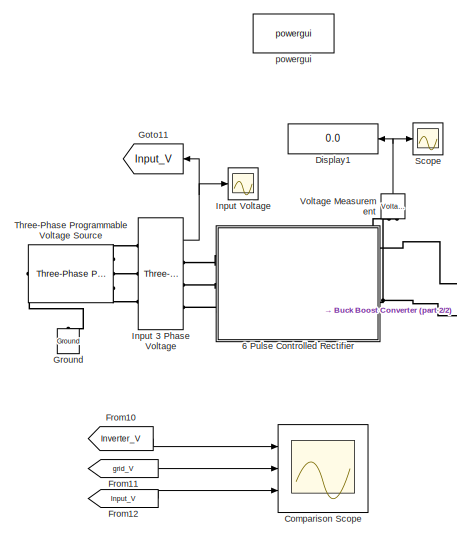
[diagram: root canvas - part 1/2, left side, full height]
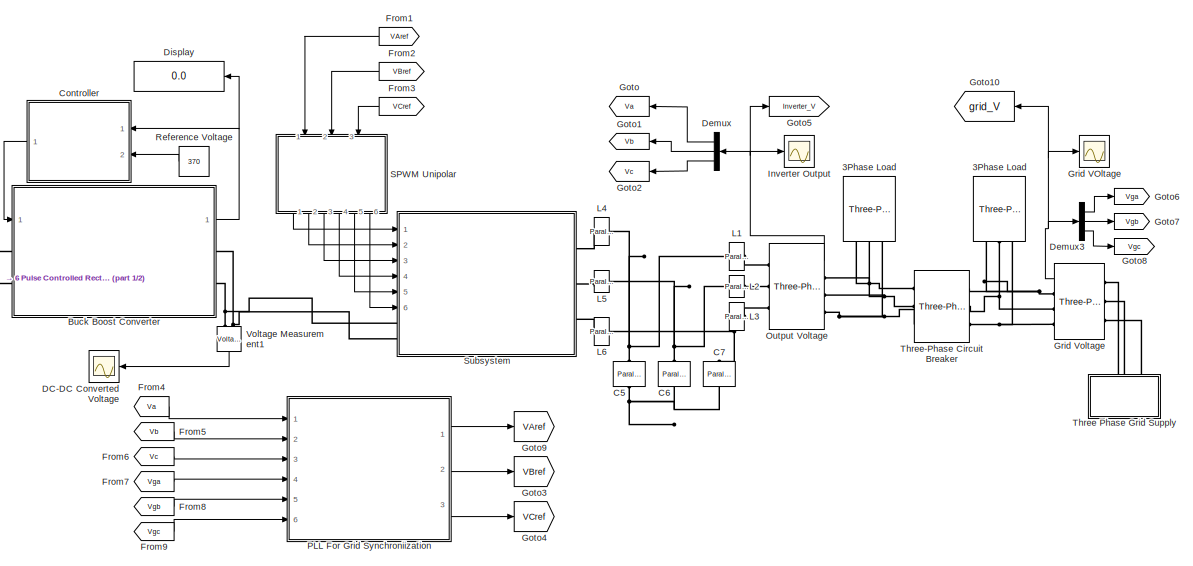
[diagram: root canvas - part 2/2, center side, full height]
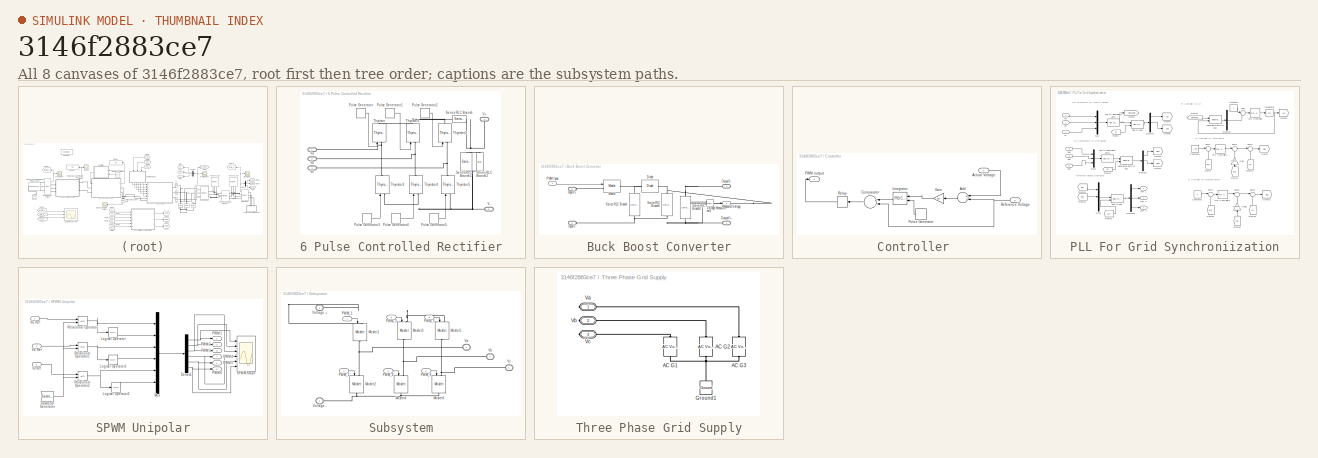
[diagram: thumbnail index - all 8 canvases of the model, root first then tree order]
MODEL slx_3146f2883ce7
KIND model
CONFIG AbsTol = auto
CONFIG EnableMultiTasking = off
CONFIG FixedStep = auto
CONFIG MaxStep = auto
CONFIG MinStep = auto
CONFIG RelTol = 1e-3
CONFIG SampleTimeConstraint = Unconstrained
CONFIG Solver = ode23tb
CONFIG SolverName = ode23tb
CONFIG StartTime = 0.0
CONFIG StopTime = 1
BLOCK [Scope]  Grid VOltage 
  Floating = off
  NumInputPorts = 1
  Ports = [1]
  ScopeSpecificationString = Simulink.scopes.TimeScopeBlockCfg('CurrentConfiguration', extmgr.ConfigurationSet(extmgr.Configuration('Core','General UI',true),extmgr.Configuration('Core','Source UI',true),extmgr.Configuration('Sources','WiredSimulink',true,'DataLoggingVariableName','ScopeData2','DataLogging',true,'DataLoggingDecimateData',true,'DataLoggingDecimation','1'),extmgr.Configuration('Visuals','Time Domain',true,'Seri...<+1931ch>
BLOCK [Reference] 3Phase Load   REF=powerlib/Elements/Three-Phase
Parallel RLC Load
  AttributesFormatString = \n
  Ports = [0, 0, 0, 0, 0, 3]
  SourceBlock = powerlib/Elements/Three-Phase\nParallel RLC Load
  SourceProductBaseCode = PS
  SourceProductName = Simscape Electrical
  SourceType = Three-Phase Parallel RLC Load
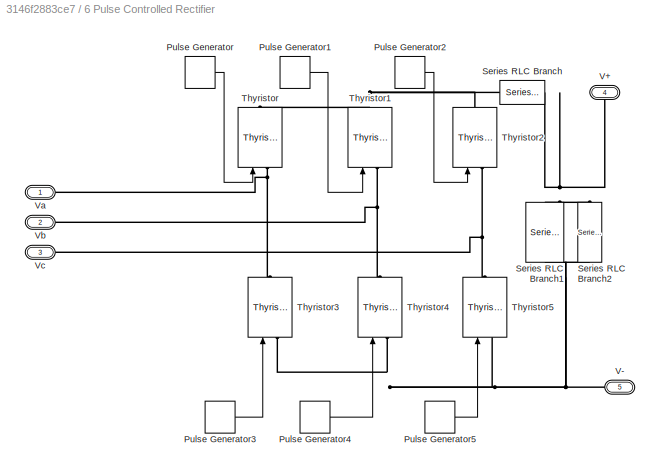
BLOCK [SubSystem] 6 Pulse Controlled Rectifier
  Ports = [0, 0, 0, 0, 0, 3, 2]
  RequestExecContextInheritance = off
BLOCK [DiscretePulseGenerator] 6 Pulse Controlled Rectifier/Pulse Generator
  Amplitude = 10
  Period = 0.02
  PhaseDelay = (50)*(0.02)/360
  Ports = [0, 1]
  PulseType = Time based
  PulseWidth = 50
BLOCK [DiscretePulseGenerator] 6 Pulse Controlled Rectifier/Pulse Generator1
  Amplitude = 10
  Period = 0.02
  PhaseDelay = (50+120)*(0.02)/360
  Ports = [0, 1]
  PulseType = Time based
  PulseWidth = 50
BLOCK [DiscretePulseGenerator] 6 Pulse Controlled Rectifier/Pulse Generator2
  Amplitude = 10
  Period = 0.02
  PhaseDelay = (50+240)*(0.02)/360
  Ports = [0, 1]
  PulseType = Time based
  PulseWidth = 50
BLOCK [DiscretePulseGenerator] 6 Pulse Controlled Rectifier/Pulse Generator3
  Amplitude = 10
  Period = 0.02
  PhaseDelay = (50+180)*(0.02)/360
  Ports = [0, 1]
  PulseType = Time based
  PulseWidth = 50
BLOCK [DiscretePulseGenerator] 6 Pulse Controlled Rectifier/Pulse Generator4
  Amplitude = 10
  Period = 0.02
  PhaseDelay = (50+300)*(0.02)/360
  Ports = [0, 1]
  PulseType = Time based
  PulseWidth = 50
BLOCK [DiscretePulseGenerator] 6 Pulse Controlled Rectifier/Pulse Generator5
  Amplitude = 10
  Period = 0.02
  PhaseDelay = (50+60)*(0.02)/360
  Ports = [0, 1]
  PulseType = Time based
  PulseWidth = 50
BLOCK [Reference] 6 Pulse Controlled Rectifier/Series RLC Branch  REF=powerlib/Elements/Series RLC Branch
  Ports = [0, 0, 0, 0, 0, 1, 1]
  SourceBlock = powerlib/Elements/Series RLC Branch
  SourceProductBaseCode = PS
  SourceProductName = Simscape Electrical
  SourceType = Series RLC Branch
BLOCK [Reference] 6 Pulse Controlled Rectifier/Series RLC Branch1  REF=powerlib/Elements/Series RLC Branch
  Ports = [0, 0, 0, 0, 0, 1, 1]
  SourceBlock = powerlib/Elements/Series RLC Branch
  SourceProductBaseCode = PS
  SourceProductName = Simscape Electrical
  SourceType = Series RLC Branch
BLOCK [Reference] 6 Pulse Controlled Rectifier/Series RLC Branch2  REF=powerlib/Elements/Series RLC Branch
  Ports = [0, 0, 0, 0, 0, 1, 1]
  SourceBlock = powerlib/Elements/Series RLC Branch
  SourceProductBaseCode = PS
  SourceProductName = Simscape Electrical
  SourceType = Series RLC Branch
BLOCK [Reference] 6 Pulse Controlled Rectifier/Thyristor  REF=powerlib/Power
Electronics/Thyristor
  Ports = [1, 0, 0, 0, 0, 1, 1]
  SourceBlock = powerlib/Power\nElectronics/Thyristor
  SourceProductBaseCode = PS
  SourceProductName = Simscape Electrical
  SourceType = Thyristor
BLOCK [Reference] 6 Pulse Controlled Rectifier/Thyristor1  REF=powerlib/Power
Electronics/Thyristor
  Ports = [1, 0, 0, 0, 0, 1, 1]
  SourceBlock = powerlib/Power\nElectronics/Thyristor
  SourceProductBaseCode = PS
  SourceProductName = Simscape Electrical
  SourceType = Thyristor
BLOCK [Reference] 6 Pulse Controlled Rectifier/Thyristor2  REF=powerlib/Power
Electronics/Thyristor
  Ports = [1, 0, 0, 0, 0, 1, 1]
  SourceBlock = powerlib/Power\nElectronics/Thyristor
  SourceProductBaseCode = PS
  SourceProductName = Simscape Electrical
  SourceType = Thyristor
BLOCK [Reference] 6 Pulse Controlled Rectifier/Thyristor3  REF=powerlib/Power
Electronics/Thyristor
  Ports = [1, 0, 0, 0, 0, 1, 1]
  SourceBlock = powerlib/Power\nElectronics/Thyristor
  SourceProductBaseCode = PS
  SourceProductName = Simscape Electrical
  SourceType = Thyristor
BLOCK [Reference] 6 Pulse Controlled Rectifier/Thyristor4  REF=powerlib/Power
Electronics/Thyristor
  Ports = [1, 0, 0, 0, 0, 1, 1]
  SourceBlock = powerlib/Power\nElectronics/Thyristor
  SourceProductBaseCode = PS
  SourceProductName = Simscape Electrical
  SourceType = Thyristor
BLOCK [Reference] 6 Pulse Controlled Rectifier/Thyristor5  REF=powerlib/Power
Electronics/Thyristor
  Ports = [1, 0, 0, 0, 0, 1, 1]
  SourceBlock = powerlib/Power\nElectronics/Thyristor
  SourceProductBaseCode = PS
  SourceProductName = Simscape Electrical
  SourceType = Thyristor
BLOCK [PMIOPort] 6 Pulse Controlled Rectifier/V+
  Port = 4
  Side = Right
BLOCK [PMIOPort] 6 Pulse Controlled Rectifier/V-
  Port = 5
  Side = Right
BLOCK [PMIOPort] 6 Pulse Controlled Rectifier/Va
  Side = Left
BLOCK [PMIOPort] 6 Pulse Controlled Rectifier/Vb
  Port = 2
  Side = Left
BLOCK [PMIOPort] 6 Pulse Controlled Rectifier/Vc
  Port = 3
  Side = Left
BLOCK [SubSystem] Buck Boost Converter
  Ports = [1, 1, 0, 0, 0, 2, 2]
  RequestExecContextInheritance = off
BLOCK [Reference] Buck Boost Converter/Diode  REF=powerlib/Power
Electronics/Diode
  Ports = [0, 0, 0, 0, 0, 1, 1]
  SourceBlock = powerlib/Power\nElectronics/Diode
  SourceProductBaseCode = PS
  SourceProductName = Simscape Electrical
  SourceType = Diode
BLOCK [PMIOPort] Buck Boost Converter/InputV+
  Port = 3
  Side = Left
BLOCK [PMIOPort] Buck Boost Converter/InputV-
  Port = 4
  Side = Left
BLOCK [Outport] Buck Boost Converter/Measured Voltage
  IconDisplay = Port number
  VectorParamsAs1DForOutWhenUnconnected = on
BLOCK [Reference] Buck Boost Converter/Mosfet  REF=powerlib/Power
Electronics/Mosfet
  Ports = [1, 0, 0, 0, 0, 1, 1]
  SourceBlock = powerlib/Power\nElectronics/Mosfet
  SourceProductBaseCode = PS
  SourceProductName = Simscape Electrical
  SourceType = Mosfet
BLOCK [PMIOPort] Buck Boost Converter/OutputV+
  Port = 2
  Side = Right
BLOCK [PMIOPort] Buck Boost Converter/OutputV-
  Side = Right
BLOCK [Inport] Buck Boost Converter/PWM Input
  IconDisplay = Port number
BLOCK [Reference] Buck Boost Converter/Series RLC Branch  REF=powerlib/Elements/Series RLC Branch
  Ports = [0, 0, 0, 0, 0, 1, 1]
  SourceBlock = powerlib/Elements/Series RLC Branch
  SourceProductBaseCode = PS
  SourceProductName = Simscape Electrical
  SourceType = Series RLC Branch
BLOCK [Reference] Buck Boost Converter/Series RLC Branch1  REF=powerlib/Elements/Series RLC Branch
  Ports = [0, 0, 0, 0, 0, 1, 1]
  SourceBlock = powerlib/Elements/Series RLC Branch
  SourceProductBaseCode = PS
  SourceProductName = Simscape Electrical
  SourceType = Series RLC Branch
BLOCK [Reference] Buck Boost Converter/Series RLC Branch2  REF=powerlib/Elements/Series RLC Branch
  Ports = [0, 0, 0, 0, 0, 1, 1]
  SourceBlock = powerlib/Elements/Series RLC Branch
  SourceProductBaseCode = PS
  SourceProductName = Simscape Electrical
  SourceType = Series RLC Branch
BLOCK [Reference] Buck Boost Converter/Voltage Measurement1  REF=powerlib/Measurements/Voltage Measurement
  Ports = [0, 1, 0, 0, 0, 2]
  SourceBlock = powerlib/Measurements/Voltage Measurement
  SourceProductBaseCode = PS
  SourceProductName = Simscape Electrical
  SourceType = Voltage Measurement
  UserDataPersistent = on
BLOCK [Reference] C5  REF=powerlib/Elements/Parallel RLC Branch
  AttributesFormatString = \n
  Ports = [0, 0, 0, 0, 0, 1, 1]
  SourceBlock = powerlib/Elements/Parallel RLC Branch
  SourceProductBaseCode = PS
  SourceProductName = Simscape Electrical
  SourceType = Parallel RLC Branch
BLOCK [Reference] C6  REF=powerlib/Elements/Parallel RLC Branch
  AttributesFormatString = \n
  Ports = [0, 0, 0, 0, 0, 1, 1]
  SourceBlock = powerlib/Elements/Parallel RLC Branch
  SourceProductBaseCode = PS
  SourceProductName = Simscape Electrical
  SourceType = Parallel RLC Branch
BLOCK [Reference] C7  REF=powerlib/Elements/Parallel RLC Branch
  AttributesFormatString = \n
  Ports = [0, 0, 0, 0, 0, 1, 1]
  SourceBlock = powerlib/Elements/Parallel RLC Branch
  SourceProductBaseCode = PS
  SourceProductName = Simscape Electrical
  SourceType = Parallel RLC Branch
BLOCK [Scope] Comparison Scope
  Floating = off
  NumInputPorts = 3
  Ports = [3]
  ScopeSpecificationString = Simulink.scopes.TimeScopeBlockCfg('CurrentConfiguration', extmgr.ConfigurationSet(extmgr.Configuration('Core','General UI',true,'FigureColor',[0.8 0.8 0.8]),extmgr.Configuration('Core','Source UI',true),extmgr.Configuration('Sources','WiredSimulink',true,'DataLoggingLimitDataPoints',true,'DataLoggingMaxPoints','100000','DataLoggingVariableName','ScopeData4'),extmgr.Configuration('Visuals','Time Do...<+4243ch>
BLOCK [SubSystem] Controller 
  Ports = [2, 1]
  RequestExecContextInheritance = off
BLOCK [Inport] Controller /Actual Voltage
  IconDisplay = Port number
BLOCK [Sum] Controller /Add
  InputSameDT = off
  OutDataTypeStr = Inherit: Inherit via internal rule
  Ports = [2, 1]
  SaturateOnIntegerOverflow = off
BLOCK [Sum] Controller /Comparator
  InputSameDT = off
  Inputs = +-
  OutDataTypeStr = Inherit: Inherit via internal rule
  Ports = [2, 1]
  SaturateOnIntegerOverflow = off
BLOCK [Gain] Controller /Gain
  Gain = 100
  OutDataTypeStr = Inherit: Inherit via internal rule
  ParamDataTypeStr = Inherit: Inherit via internal rule
  SaturateOnIntegerOverflow = off
BLOCK [Reference] Controller /Integrator  REF=simulink/Continuous/PID Controller
  Ports = [2, 1]
  SourceBlock = simulink/Continuous/PID Controller
  SourceProductBaseCode = SL
  SourceProductName = Simulink
  SourceType = PID 1dof
BLOCK [Outport] Controller /PWM output
  IconDisplay = Port number
  VectorParamsAs1DForOutWhenUnconnected = on
BLOCK [DiscretePulseGenerator] Controller /Pulse Generator
  Period = 1/10000
  Ports = [0, 1]
  PulseType = Time based
  PulseWidth = 50
BLOCK [Inport] Controller /Reference Voltage
  IconDisplay = Port number
  Port = 2
BLOCK [Relay] Controller /Relay
  InputProcessing = Elements as channels (sample based)
BLOCK [Scope] DC-DC Converted Voltage
  Floating = off
  NumInputPorts = 1
  Ports = [1]
  ScopeSpecificationString = Simulink.scopes.TimeScopeBlockCfg('CurrentConfiguration', extmgr.ConfigurationSet(extmgr.Configuration('Core','General UI',true,'FigureColor',[0.8 0.8 0.8]),extmgr.Configuration('Core','Source UI',true),extmgr.Configuration('Sources','WiredSimulink',true,'DataLoggingDecimateData',true,'DataLoggingDecimation','1','DataLoggingVariableName','BuckBoost_Voltage','DataLogging',true),extmgr.Configuration...<+1764ch>
BLOCK [Demux] Demux
  DisplayOption = bar
  Outputs = 3
  Ports = [1, 3]
BLOCK [Demux] Demux3
  DisplayOption = bar
  Outputs = 3
  Ports = [1, 3]
BLOCK [Display] Display
  Decimation = 1
  Ports = [1]
BLOCK [Display] Display1
  Decimation = 1
  Ports = [1]
BLOCK [From] From1
  GotoTag = VAref
BLOCK [From] From10
  GotoTag = Inverter_V
BLOCK [From] From11
  GotoTag = grid_V
BLOCK [From] From12
  GotoTag = Input_V
BLOCK [From] From2
  GotoTag = VBref
BLOCK [From] From3
  GotoTag = VCref
BLOCK [From] From4
  GotoTag = Va
BLOCK [From] From5
  GotoTag = Vb
BLOCK [From] From6
  GotoTag = Vc
BLOCK [From] From7
  GotoTag = Vga
BLOCK [From] From8
  GotoTag = Vgb
BLOCK [From] From9
  GotoTag = Vgc
BLOCK [Goto] Goto
  GotoTag = Va
BLOCK [Goto] Goto1
  GotoTag = Vb
BLOCK [Goto] Goto10
  GotoTag = grid_V
BLOCK [Goto] Goto11
  GotoTag = Input_V
BLOCK [Goto] Goto2
  GotoTag = Vc
BLOCK [Goto] Goto3
  GotoTag = VBref
BLOCK [Goto] Goto4
  GotoTag = VCref
BLOCK [Goto] Goto5
  GotoTag = Inverter_V
BLOCK [Goto] Goto6
  GotoTag = Vga
BLOCK [Goto] Goto7
  GotoTag = Vgb
BLOCK [Goto] Goto8
  GotoTag = Vgc
BLOCK [Goto] Goto9
  GotoTag = VAref
BLOCK [Reference] Grid Voltage  REF=powerlib/Measurements/Three-Phase
V-I Measurement
  Ports = [0, 1, 0, 0, 0, 3, 3]
  SourceBlock = powerlib/Measurements/Three-Phase\nV-I Measurement
  SourceProductBaseCode = PS
  SourceProductName = Simscape Electrical
  SourceType = Three-Phase VI Measurement
BLOCK [Reference] Ground  REF=powerlib/Elements/Ground
  Ports = [0, 0, 0, 0, 0, 1]
  SourceBlock = powerlib/Elements/Ground
  SourceProductBaseCode = PS
  SourceProductName = Simscape Electrical
  SourceType = Ground
BLOCK [Reference] Input 3 Phase Voltage  REF=powerlib/Measurements/Three-Phase
V-I Measurement
  Ports = [0, 1, 0, 0, 0, 3, 3]
  SourceBlock = powerlib/Measurements/Three-Phase\nV-I Measurement
  SourceProductBaseCode = PS
  SourceProductName = Simscape Electrical
  SourceType = Three-Phase VI Measurement
BLOCK [Scope] Input Voltage
  Floating = off
  NumInputPorts = 1
  Ports = [1]
  ScopeSpecificationString = Simulink.scopes.TimeScopeBlockCfg('CurrentConfiguration', extmgr.ConfigurationSet(extmgr.Configuration('Core','General UI',true,'FigureColor',[0.8 0.8 0.8]),extmgr.Configuration('Core','Source UI',true),extmgr.Configuration('Sources','WiredSimulink',true,'DataLogging',true,'DataLoggingVariableName','ScopeData1','DataLoggingDecimateData',true,'DataLoggingDecimation','1'),extmgr.Configuration('Visua...<+2062ch>
BLOCK [Scope] Inverter Output 
  Floating = off
  NumInputPorts = 1
  Ports = [1]
  ScopeSpecificationString = Simulink.scopes.TimeScopeBlockCfg('CurrentConfiguration', extmgr.ConfigurationSet(extmgr.Configuration('Core','General UI',true,'FigureColor',[0.8 0.8 0.8]),extmgr.Configuration('Core','Source UI',true),extmgr.Configuration('Sources','WiredSimulink',true,'DataLoggingVariableName','ScopeData3','DataLogging',true,'DataLoggingDecimateData',true,'DataLoggingDecimation','1'),extmgr.Configuration('Visua...<+2005ch>
BLOCK [Reference] L1  REF=powerlib/Elements/Parallel RLC Branch
  AttributesFormatString = \n
  Ports = [0, 0, 0, 0, 0, 1, 1]
  SourceBlock = powerlib/Elements/Parallel RLC Branch
  SourceProductBaseCode = PS
  SourceProductName = Simscape Electrical
  SourceType = Parallel RLC Branch
BLOCK [Reference] L2  REF=powerlib/Elements/Parallel RLC Branch
  AttributesFormatString = \n
  Ports = [0, 0, 0, 0, 0, 1, 1]
  SourceBlock = powerlib/Elements/Parallel RLC Branch
  SourceProductBaseCode = PS
  SourceProductName = Simscape Electrical
  SourceType = Parallel RLC Branch
BLOCK [Reference] L3  REF=powerlib/Elements/Parallel RLC Branch
  AttributesFormatString = \n
  Ports = [0, 0, 0, 0, 0, 1, 1]
  SourceBlock = powerlib/Elements/Parallel RLC Branch
  SourceProductBaseCode = PS
  SourceProductName = Simscape Electrical
  SourceType = Parallel RLC Branch
BLOCK [Reference] L4  REF=powerlib/Elements/Parallel RLC Branch
  AttributesFormatString = \n
  Ports = [0, 0, 0, 0, 0, 1, 1]
  SourceBlock = powerlib/Elements/Parallel RLC Branch
  SourceProductBaseCode = PS
  SourceProductName = Simscape Electrical
  SourceType = Parallel RLC Branch
BLOCK [Reference] L5  REF=powerlib/Elements/Parallel RLC Branch
  AttributesFormatString = \n
  Ports = [0, 0, 0, 0, 0, 1, 1]
  SourceBlock = powerlib/Elements/Parallel RLC Branch
  SourceProductBaseCode = PS
  SourceProductName = Simscape Electrical
  SourceType = Parallel RLC Branch
BLOCK [Reference] L6  REF=powerlib/Elements/Parallel RLC Branch
  AttributesFormatString = \n
  Ports = [0, 0, 0, 0, 0, 1, 1]
  SourceBlock = powerlib/Elements/Parallel RLC Branch
  SourceProductBaseCode = PS
  SourceProductName = Simscape Electrical
  SourceType = Parallel RLC Branch
BLOCK [Reference] Output Voltage  REF=powerlib/Measurements/Three-Phase
V-I Measurement
  Ports = [0, 1, 0, 0, 0, 3, 3]
  SourceBlock = powerlib/Measurements/Three-Phase\nV-I Measurement
  SourceProductBaseCode = PS
  SourceProductName = Simscape Electrical
  SourceType = Three-Phase VI Measurement
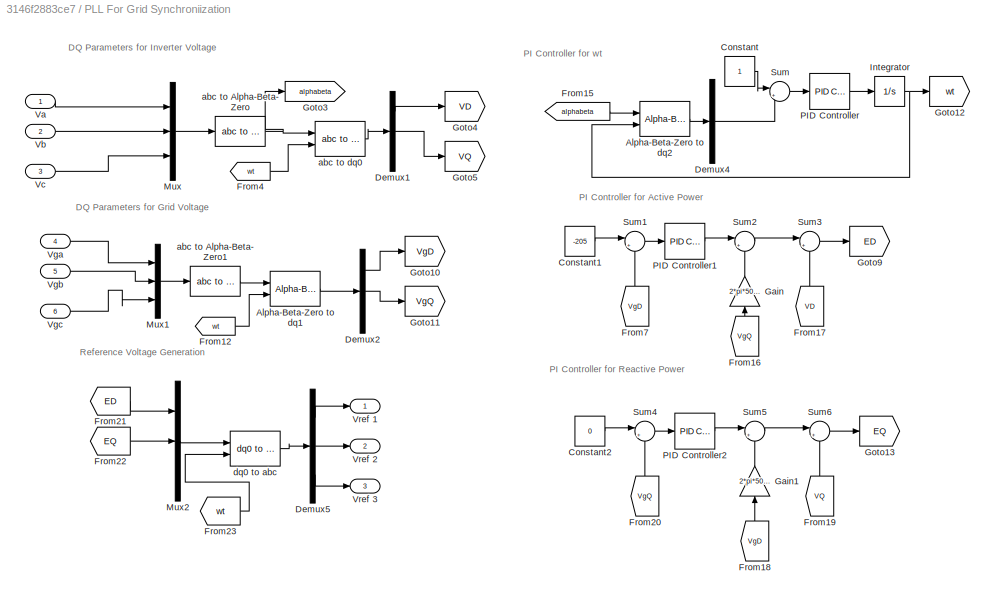
BLOCK [SubSystem] PLL For Grid Synchroniization
  Ports = [6, 3]
  RequestExecContextInheritance = off
BLOCK [Reference] PLL For Grid Synchroniization/Alpha-Beta-Zero to dq1  REF=powerlib_meascontrol/Transformations/Alpha-Beta-Zero
to dq0
  Ports = [2, 1]
  SourceBlock = powerlib_meascontrol/Transformations/Alpha-Beta-Zero\nto dq0
  SourceProductBaseCode = PS
  SourceProductName = Simscape Power Systems
  SourceType = Alpha-Beta-Zero to dq0 Transformation
BLOCK [Reference] PLL For Grid Synchroniization/Alpha-Beta-Zero to dq2  REF=powerlib_meascontrol/Transformations/Alpha-Beta-Zero
to dq0
  Ports = [2, 1]
  SourceBlock = powerlib_meascontrol/Transformations/Alpha-Beta-Zero\nto dq0
  SourceProductBaseCode = PS
  SourceProductName = Simscape Power Systems
  SourceType = Alpha-Beta-Zero to dq0 Transformation
BLOCK [Constant] PLL For Grid Synchroniization/Constant
BLOCK [Constant] PLL For Grid Synchroniization/Constant1
  Value = -205
BLOCK [Constant] PLL For Grid Synchroniization/Constant2
  Value = 0
BLOCK [Demux] PLL For Grid Synchroniization/Demux1
  DisplayOption = bar
  Outputs = 3
  Ports = [1, 3]
BLOCK [Demux] PLL For Grid Synchroniization/Demux2
  DisplayOption = bar
  Outputs = 3
  Ports = [1, 3]
BLOCK [Demux] PLL For Grid Synchroniization/Demux4
  DisplayOption = bar
  Outputs = 3
  Ports = [1, 3]
BLOCK [Demux] PLL For Grid Synchroniization/Demux5
  DisplayOption = bar
  Outputs = 3
  Ports = [1, 3]
BLOCK [From] PLL For Grid Synchroniization/From12
  GotoTag = wt
BLOCK [From] PLL For Grid Synchroniization/From15
  GotoTag = alphabeta
BLOCK [From] PLL For Grid Synchroniization/From16
  GotoTag = VgQ
BLOCK [From] PLL For Grid Synchroniization/From17
  GotoTag = VD
BLOCK [From] PLL For Grid Synchroniization/From18
  GotoTag = VgD
BLOCK [From] PLL For Grid Synchroniization/From19
  GotoTag = VQ
BLOCK [From] PLL For Grid Synchroniization/From20
  GotoTag = VgQ
BLOCK [From] PLL For Grid Synchroniization/From21
  GotoTag = ED
BLOCK [From] PLL For Grid Synchroniization/From22
  GotoTag = EQ
BLOCK [From] PLL For Grid Synchroniization/From23
  GotoTag = wt
BLOCK [From] PLL For Grid Synchroniization/From4
  GotoTag = wt
BLOCK [From] PLL For Grid Synchroniization/From7
  GotoTag = VgD
BLOCK [Gain] PLL For Grid Synchroniization/Gain
  Gain = 2*pi*50*1000e-6
  OutDataTypeStr = Inherit: Inherit via internal rule
  ParamDataTypeStr = Inherit: Inherit via internal rule
  SaturateOnIntegerOverflow = off
BLOCK [Gain] PLL For Grid Synchroniization/Gain1
  Gain = 2*pi*50*1000e-6
  OutDataTypeStr = Inherit: Inherit via internal rule
  ParamDataTypeStr = Inherit: Inherit via internal rule
  SaturateOnIntegerOverflow = off
BLOCK [Goto] PLL For Grid Synchroniization/Goto10
  GotoTag = VgD
BLOCK [Goto] PLL For Grid Synchroniization/Goto11
  GotoTag = VgQ
BLOCK [Goto] PLL For Grid Synchroniization/Goto12
  GotoTag = wt
BLOCK [Goto] PLL For Grid Synchroniization/Goto13
  GotoTag = EQ
BLOCK [Goto] PLL For Grid Synchroniization/Goto3
  GotoTag = alphabeta
BLOCK [Goto] PLL For Grid Synchroniization/Goto4
  GotoTag = VD
BLOCK [Goto] PLL For Grid Synchroniization/Goto5
  GotoTag = VQ
BLOCK [Goto] PLL For Grid Synchroniization/Goto9
  GotoTag = ED
BLOCK [Integrator] PLL For Grid Synchroniization/Integrator
  Ports = [1, 1]
BLOCK [Mux] PLL For Grid Synchroniization/Mux
  DisplayOption = bar
  Inputs = 3
  Ports = [3, 1]
BLOCK [Mux] PLL For Grid Synchroniization/Mux1
  DisplayOption = bar
  Inputs = 3
  Ports = [3, 1]
BLOCK [Mux] PLL For Grid Synchroniization/Mux2
  DisplayOption = bar
  Inputs = 3
  Ports = [3, 1]
BLOCK [Reference] PLL For Grid Synchroniization/PID Controller  REF=simulink/Continuous/PID Controller
  Ports = [1, 1]
  SourceBlock = simulink/Continuous/PID Controller
  SourceProductBaseCode = SL
  SourceProductName = Simulink
  SourceType = PID 1dof
BLOCK [Reference] PLL For Grid Synchroniization/PID Controller1  REF=simulink/Continuous/PID Controller
  Ports = [1, 1]
  SourceBlock = simulink/Continuous/PID Controller
  SourceProductBaseCode = SL
  SourceProductName = Simulink
  SourceType = PID 1dof
BLOCK [Reference] PLL For Grid Synchroniization/PID Controller2  REF=simulink/Continuous/PID Controller
  Ports = [1, 1]
  SourceBlock = simulink/Continuous/PID Controller
  SourceProductBaseCode = SL
  SourceProductName = Simulink
  SourceType = PID 1dof
BLOCK [Sum] PLL For Grid Synchroniization/Sum
  IconShape = round
  InputSameDT = off
  Inputs = |+-
  OutDataTypeStr = Inherit: Inherit via internal rule
  Ports = [2, 1]
  SaturateOnIntegerOverflow = off
BLOCK [Sum] PLL For Grid Synchroniization/Sum1
  IconShape = round
  InputSameDT = off
  Inputs = |+-
  OutDataTypeStr = Inherit: Inherit via internal rule
  Ports = [2, 1]
  SaturateOnIntegerOverflow = off
BLOCK [Sum] PLL For Grid Synchroniization/Sum2
  IconShape = round
  InputSameDT = off
  Inputs = |++
  OutDataTypeStr = Inherit: Inherit via internal rule
  Ports = [2, 1]
  SaturateOnIntegerOverflow = off
BLOCK [Sum] PLL For Grid Synchroniization/Sum3
  IconShape = round
  InputSameDT = off
  Inputs = |++
  OutDataTypeStr = Inherit: Inherit via internal rule
  Ports = [2, 1]
  SaturateOnIntegerOverflow = off
BLOCK [Sum] PLL For Grid Synchroniization/Sum4
  IconShape = round
  InputSameDT = off
  Inputs = |+-
  OutDataTypeStr = Inherit: Inherit via internal rule
  Ports = [2, 1]
  SaturateOnIntegerOverflow = off
BLOCK [Sum] PLL For Grid Synchroniization/Sum5
  IconShape = round
  InputSameDT = off
  Inputs = |+-
  OutDataTypeStr = Inherit: Inherit via internal rule
  Ports = [2, 1]
  SaturateOnIntegerOverflow = off
BLOCK [Sum] PLL For Grid Synchroniization/Sum6
  IconShape = round
  InputSameDT = off
  Inputs = |++
  OutDataTypeStr = Inherit: Inherit via internal rule
  Ports = [2, 1]
  SaturateOnIntegerOverflow = off
BLOCK [Inport] PLL For Grid Synchroniization/Va 
  IconDisplay = Port number
BLOCK [Inport] PLL For Grid Synchroniization/Vb
  IconDisplay = Port number
  Port = 2
BLOCK [Inport] PLL For Grid Synchroniization/Vc
  IconDisplay = Port number
  Port = 3
BLOCK [Inport] PLL For Grid Synchroniization/Vga
  IconDisplay = Port number
  Port = 4
BLOCK [Inport] PLL For Grid Synchroniization/Vgb
  IconDisplay = Port number
  Port = 5
BLOCK [Inport] PLL For Grid Synchroniization/Vgc
  IconDisplay = Port number
  Port = 6
BLOCK [Outport] PLL For Grid Synchroniization/Vref 1
  IconDisplay = Port number
  VectorParamsAs1DForOutWhenUnconnected = on
BLOCK [Outport] PLL For Grid Synchroniization/Vref 2
  IconDisplay = Port number
  Port = 2
  VectorParamsAs1DForOutWhenUnconnected = on
BLOCK [Outport] PLL For Grid Synchroniization/Vref 3
  IconDisplay = Port number
  Port = 3
  VectorParamsAs1DForOutWhenUnconnected = on
BLOCK [Reference] PLL For Grid Synchroniization/abc to Alpha-Beta-Zero  REF=powerlib_meascontrol/Transformations/abc to
Alpha-Beta-Zero
  Ports = [1, 1]
  SourceBlock = powerlib_meascontrol/Transformations/abc to\nAlpha-Beta-Zero
  SourceProductBaseCode = PS
  SourceProductName = Simscape Power Systems
  SourceType = abc to Alpha-Beta-Zero Transformation
BLOCK [Reference] PLL For Grid Synchroniization/abc to Alpha-Beta-Zero1  REF=powerlib_meascontrol/Transformations/abc to
Alpha-Beta-Zero
  Ports = [1, 1]
  SourceBlock = powerlib_meascontrol/Transformations/abc to\nAlpha-Beta-Zero
  SourceProductBaseCode = PS
  SourceProductName = Simscape Power Systems
  SourceType = abc to Alpha-Beta-Zero Transformation
BLOCK [Reference] PLL For Grid Synchroniization/abc to dq0  REF=powerlib_meascontrol/Transformations/abc to dq0
  Ports = [2, 1]
  SourceBlock = powerlib_meascontrol/Transformations/abc to dq0
  SourceProductBaseCode = PS
  SourceProductName = Simscape Power Systems
  SourceType = abc to dq0 Transformation
BLOCK [Reference] PLL For Grid Synchroniization/dq0 to abc  REF=powerlib_meascontrol/Transformations/dq0 to abc
  Ports = [2, 1]
  SourceBlock = powerlib_meascontrol/Transformations/dq0 to abc
  SourceProductBaseCode = PS
  SourceProductName = Simscape Power Systems
  SourceType = dq0 to abc Transformation
BLOCK [Constant] Reference Voltage
  Value = 370
BLOCK [SubSystem] SPWM Unipolar
  Ports = [3, 6]
  RequestExecContextInheritance = off
BLOCK [Demux] SPWM Unipolar/Demux1
  DisplayOption = bar
  Outputs = 6
  Ports = [1, 6]
BLOCK [Logic] SPWM Unipolar/Logical Operator
  AllPortsSameDT = off
  Operator = NOT
  OutDataTypeStr = boolean
  Ports = [1, 1]
BLOCK [Logic] SPWM Unipolar/Logical Operator1
  AllPortsSameDT = off
  Operator = NOT
  OutDataTypeStr = boolean
  Ports = [1, 1]
BLOCK [Logic] SPWM Unipolar/Logical Operator2
  AllPortsSameDT = off
  Operator = NOT
  OutDataTypeStr = boolean
  Ports = [1, 1]
BLOCK [Mux] SPWM Unipolar/Mux
  DisplayOption = bar
  Inputs = 6
  Ports = [6, 1]
BLOCK [Outport] SPWM Unipolar/PWM 1
  IconDisplay = Port number
  VectorParamsAs1DForOutWhenUnconnected = on
BLOCK [Outport] SPWM Unipolar/PWM 2
  IconDisplay = Port number
  Port = 2
  VectorParamsAs1DForOutWhenUnconnected = on
BLOCK [Outport] SPWM Unipolar/PWM 3
  IconDisplay = Port number
  Port = 3
  VectorParamsAs1DForOutWhenUnconnected = on
BLOCK [Outport] SPWM Unipolar/PWM 4
  IconDisplay = Port number
  Port = 4
  VectorParamsAs1DForOutWhenUnconnected = on
BLOCK [Outport] SPWM Unipolar/PWM 5
  IconDisplay = Port number
  Port = 5
  VectorParamsAs1DForOutWhenUnconnected = on
BLOCK [Outport] SPWM Unipolar/PWM 6 
  IconDisplay = Port number
  Port = 6
  VectorParamsAs1DForOutWhenUnconnected = on
BLOCK [RelationalOperator] SPWM Unipolar/Relational Operator
  InputSameDT = off
  OutDataTypeStr = boolean
  Ports = [2, 1]
BLOCK [RelationalOperator] SPWM Unipolar/Relational Operator1
  InputSameDT = off
  OutDataTypeStr = boolean
  Ports = [2, 1]
BLOCK [RelationalOperator] SPWM Unipolar/Relational Operator2
  InputSameDT = off
  OutDataTypeStr = boolean
  Ports = [2, 1]
BLOCK [Scope] SPWM Unipolar/SPWM Scope
  Floating = off
  NumInputPorts = 6
  Ports = [6]
  ScopeSpecificationString = Simulink.scopes.TimeScopeBlockCfg('CurrentConfiguration', extmgr.ConfigurationSet(extmgr.Configuration('Core','General UI',true),extmgr.Configuration('Core','Source UI',true),extmgr.Configuration('Sources','WiredSimulink',true,'DataLoggingSaveFormat','StructureWithTime','DataLoggingDecimation','1','DataLoggingDecimateData',true,'DataLoggingVariableName','ScopeData1'),extmgr.Configuration('Visuals'...<+5116ch>
BLOCK [Reference] SPWM Unipolar/Sawtooth Generator  REF=powerlib_meascontrol/Pulse & Signal
Generators/Sawtooth
Generator
  Ports = [0, 1]
  SourceBlock = powerlib_meascontrol/Pulse & Signal\nGenerators/Sawtooth\nGenerator
  SourceProductBaseCode = PS
  SourceProductName = Simscape Electrical
  SourceType = Sawtooth Generator
BLOCK [Inport] SPWM Unipolar/Va Ref
  IconDisplay = Port number
BLOCK [Inport] SPWM Unipolar/Vb Ref
  IconDisplay = Port number
  Port = 2
BLOCK [Inport] SPWM Unipolar/Vc Ref
  IconDisplay = Port number
  Port = 3
BLOCK [Scope] Scope
  Floating = off
  NumInputPorts = 1
  Ports = [1]
  ScopeSpecificationString = Simulink.scopes.TimeScopeBlockCfg('CurrentConfiguration', extmgr.ConfigurationSet(extmgr.Configuration('Core','General UI',true,'FigureColor',[0.8 0.8 0.8]),extmgr.Configuration('Core','Source UI',true),extmgr.Configuration('Sources','WiredSimulink',true,'DataLogging',true,'DataLoggingDecimateData',true,'DataLoggingDecimation','1','DataLoggingVariableName','Rectifier_Output'),extmgr.Configuration(...<+1767ch>
BLOCK [SubSystem] Subsystem
  Ports = [6, 0, 0, 0, 0, 2, 3]
  RequestExecContextInheritance = off
BLOCK [Reference] Subsystem/Mosfet1  REF=powerlib/Power
Electronics/Mosfet
  Ports = [1, 0, 0, 0, 0, 1, 1]
  SourceBlock = powerlib/Power\nElectronics/Mosfet
  SourceProductBaseCode = PS
  SourceProductName = Simscape Electrical
  SourceType = Mosfet
BLOCK [Reference] Subsystem/Mosfet2  REF=powerlib/Power
Electronics/Mosfet
  Ports = [1, 0, 0, 0, 0, 1, 1]
  SourceBlock = powerlib/Power\nElectronics/Mosfet
  SourceProductBaseCode = PS
  SourceProductName = Simscape Electrical
  SourceType = Mosfet
BLOCK [Reference] Subsystem/Mosfet3  REF=powerlib/Power
Electronics/Mosfet
  Ports = [1, 0, 0, 0, 0, 1, 1]
  SourceBlock = powerlib/Power\nElectronics/Mosfet
  SourceProductBaseCode = PS
  SourceProductName = Simscape Electrical
  SourceType = Mosfet
BLOCK [Reference] Subsystem/Mosfet4  REF=powerlib/Power
Electronics/Mosfet
  Ports = [1, 0, 0, 0, 0, 1, 1]
  SourceBlock = powerlib/Power\nElectronics/Mosfet
  SourceProductBaseCode = PS
  SourceProductName = Simscape Electrical
  SourceType = Mosfet
BLOCK [Reference] Subsystem/Mosfet5  REF=powerlib/Power
Electronics/Mosfet
  Ports = [1, 0, 0, 0, 0, 1, 1]
  SourceBlock = powerlib/Power\nElectronics/Mosfet
  SourceProductBaseCode = PS
  SourceProductName = Simscape Electrical
  SourceType = Mosfet
BLOCK [Reference] Subsystem/Mosfet6  REF=powerlib/Power
Electronics/Mosfet
  Ports = [1, 0, 0, 0, 0, 1, 1]
  SourceBlock = powerlib/Power\nElectronics/Mosfet
  SourceProductBaseCode = PS
  SourceProductName = Simscape Electrical
  SourceType = Mosfet
BLOCK [Inport] Subsystem/PWM_1
  IconDisplay = Port number
BLOCK [Inport] Subsystem/PWM_2
  IconDisplay = Port number
  Port = 2
BLOCK [Inport] Subsystem/PWM_3
  IconDisplay = Port number
  Port = 3
BLOCK [Inport] Subsystem/PWM_4
  IconDisplay = Port number
  Port = 4
BLOCK [Inport] Subsystem/PWM_5
  IconDisplay = Port number
  Port = 5
BLOCK [Inport] Subsystem/PWM_6
  IconDisplay = Port number
  Port = 6
BLOCK [PMIOPort] Subsystem/Va
  Port = 3
  Side = Right
BLOCK [PMIOPort] Subsystem/Vb
  Port = 4
  Side = Right
BLOCK [PMIOPort] Subsystem/Vc
  Port = 5
  Side = Right
BLOCK [PMIOPort] Subsystem/Voltage +
  Side = Left
BLOCK [PMIOPort] Subsystem/Voltage -
  Port = 2
  Side = Left
BLOCK [SubSystem] Three Phase Grid Supply
  Ports = [0, 0, 0, 0, 0, 0, 3]
  RequestExecContextInheritance = off
BLOCK [Reference] Three Phase Grid Supply/AC G1  REF=powerlib/Electrical
Sources/AC Voltage Source
  Ports = [0, 0, 0, 0, 0, 1, 1]
  SourceBlock = powerlib/Electrical\nSources/AC Voltage Source
  SourceProductBaseCode = PS
  SourceProductName = Simscape Electrical
  SourceType = AC Voltage Source
BLOCK [Reference] Three Phase Grid Supply/AC G2  REF=powerlib/Electrical
Sources/AC Voltage Source
  Ports = [0, 0, 0, 0, 0, 1, 1]
  SourceBlock = powerlib/Electrical\nSources/AC Voltage Source
  SourceProductBaseCode = PS
  SourceProductName = Simscape Electrical
  SourceType = AC Voltage Source
BLOCK [Reference] Three Phase Grid Supply/AC G3  REF=powerlib/Electrical
Sources/AC Voltage Source
  Ports = [0, 0, 0, 0, 0, 1, 1]
  SourceBlock = powerlib/Electrical\nSources/AC Voltage Source
  SourceProductBaseCode = PS
  SourceProductName = Simscape Electrical
  SourceType = AC Voltage Source
BLOCK [Reference] Three Phase Grid Supply/Ground1  REF=powerlib/Elements/Ground
  Ports = [0, 0, 0, 0, 0, 1]
  SourceBlock = powerlib/Elements/Ground
  SourceProductBaseCode = PS
  SourceProductName = Simscape Electrical
  SourceType = Ground
BLOCK [PMIOPort] Three Phase Grid Supply/Va
  Side = Right
BLOCK [PMIOPort] Three Phase Grid Supply/Vb
  Port = 2
  Side = Right
BLOCK [PMIOPort] Three Phase Grid Supply/Vc
  Port = 3
  Side = Right
BLOCK [Reference] Three-Phase Circuit Breaker  REF=powerlib/Elements/Three-Phase Breaker
  Ports = [0, 0, 0, 0, 0, 3, 3]
  SourceBlock = powerlib/Elements/Three-Phase Breaker
  SourceProductBaseCode = PS
  SourceProductName = Simscape Electrical
  SourceType = Three-Phase Breaker
BLOCK [Reference] Three-Phase Programmable Voltage Source  REF=powerlib/Electrical
Sources/Three-Phase
Programmable
Voltage Source
  Ports = [0, 0, 0, 0, 0, 1, 3]
  SourceBlock = powerlib/Electrical\nSources/Three-Phase\nProgrammable\nVoltage Source
  SourceProductBaseCode = PS
  SourceProductName = Simscape Electrical
  SourceType = Three-Phase Programmable Voltage Source
BLOCK [Reference] Voltage Measurement  REF=powerlib/Measurements/Voltage Measurement
  Ports = [0, 1, 0, 0, 0, 2]
  SourceBlock = powerlib/Measurements/Voltage Measurement
  SourceProductBaseCode = PS
  SourceProductName = Simscape Electrical
  SourceType = Voltage Measurement
  UserDataPersistent = on
BLOCK [Reference] Voltage Measurement1  REF=powerlib/Measurements/Voltage Measurement
  Ports = [0, 1, 0, 0, 0, 2]
  SourceBlock = powerlib/Measurements/Voltage Measurement
  SourceProductBaseCode = PS
  SourceProductName = Simscape Electrical
  SourceType = Voltage Measurement
  UserDataPersistent = on
BLOCK [Reference] powergui  REF=powerlib/powergui
  Ports = []
  Priority = 1
  SourceBlock = powerlib/powergui
  SourceProductBaseCode = PS
  SourceProductName = Simscape Power Systems
  SourceType = PSB option menu block
ANNOTATION PLL For Grid Synchroniization: DQ Parameters for Grid Voltage
ANNOTATION PLL For Grid Synchroniization: DQ Parameters for Inverter Voltage
ANNOTATION PLL For Grid Synchroniization: PI Controller for Active Power
ANNOTATION PLL For Grid Synchroniization: PI Controller for Reactive Power
ANNOTATION PLL For Grid Synchroniization: PI Controller for wt
ANNOTATION PLL For Grid Synchroniization: Reference Voltage Generation
LINE 6 Pulse Controlled Rectifier/Pulse Generator1:1 -> 6 Pulse Controlled Rectifier/Thyristor1:1
LINE 6 Pulse Controlled Rectifier/Pulse Generator2:1 -> 6 Pulse Controlled Rectifier/Thyristor2:1
LINE 6 Pulse Controlled Rectifier/Pulse Generator3:1 -> 6 Pulse Controlled Rectifier/Thyristor3:1
LINE 6 Pulse Controlled Rectifier/Pulse Generator4:1 -> 6 Pulse Controlled Rectifier/Thyristor4:1
LINE 6 Pulse Controlled Rectifier/Pulse Generator5:1 -> 6 Pulse Controlled Rectifier/Thyristor5:1
LINE 6 Pulse Controlled Rectifier/Pulse Generator:1 -> 6 Pulse Controlled Rectifier/Thyristor:1
LINE Buck Boost Converter/PWM Input:1 -> Buck Boost Converter/Mosfet:1
LINE Buck Boost Converter/Voltage Measurement1:1 -> Buck Boost Converter/Measured Voltage:1
NET Buck Boost Converter:1 -> Controller :1, Display:1
LINE Controller /Actual Voltage:1 -> Controller /Add:1
LINE Controller /Add:1 -> Controller /Gain:1
LINE Controller /Comparator:1 -> Controller /Relay:1
LINE Controller /Gain:1 -> Controller /Integrator:1
LINE Controller /Integrator:1 -> Controller /Comparator:1
LINE Controller /Pulse Generator:1 -> Controller /Integrator:2
NET Controller /Reference Voltage:1 -> Controller /Add:2, Controller /Comparator:2
LINE Controller /Relay:1 -> Controller /PWM output:1
LINE Controller :1 -> Buck Boost Converter:1
LINE Demux3:1 -> Goto6:1
LINE Demux3:2 -> Goto7:1
LINE Demux3:3 -> Goto8:1
LINE Demux:1 -> Goto:1
LINE Demux:2 -> Goto1:1
LINE Demux:3 -> Goto2:1
LINE From10:1 -> Comparison Scope:1
LINE From11:1 -> Comparison Scope:2
LINE From12:1 -> Comparison Scope:3
LINE From1:1 -> SPWM Unipolar:1
LINE From2:1 -> SPWM Unipolar:2
LINE From3:1 -> SPWM Unipolar:3
LINE From4:1 -> PLL For Grid Synchroniization:1
LINE From5:1 -> PLL For Grid Synchroniization:2
LINE From6:1 -> PLL For Grid Synchroniization:3
LINE From7:1 -> PLL For Grid Synchroniization:4
LINE From8:1 -> PLL For Grid Synchroniization:5
LINE From9:1 -> PLL For Grid Synchroniization:6
NET Grid Voltage:1 ->  Grid VOltage :1, Demux3:1, Goto10:1
NET Input 3 Phase Voltage:1 -> Goto11:1, Input Voltage:1
NET Output Voltage:1 -> Demux:1, Goto5:1, Inverter Output :1
LINE PLL For Grid Synchroniization/Alpha-Beta-Zero to dq1:1 -> PLL For Grid Synchroniization/Demux2:1
LINE PLL For Grid Synchroniization/Alpha-Beta-Zero to dq2:1 -> PLL For Grid Synchroniization/Demux4:1
LINE PLL For Grid Synchroniization/Constant1:1 -> PLL For Grid Synchroniization/Sum1:1
LINE PLL For Grid Synchroniization/Constant2:1 -> PLL For Grid Synchroniization/Sum4:1
LINE PLL For Grid Synchroniization/Constant:1 -> PLL For Grid Synchroniization/Sum:1
LINE PLL For Grid Synchroniization/Demux1:1 -> PLL For Grid Synchroniization/Goto4:1
LINE PLL For Grid Synchroniization/Demux1:2 -> PLL For Grid Synchroniization/Goto5:1
LINE PLL For Grid Synchroniization/Demux2:1 -> PLL For Grid Synchroniization/Goto10:1
LINE PLL For Grid Synchroniization/Demux2:2 -> PLL For Grid Synchroniization/Goto11:1
LINE PLL For Grid Synchroniization/Demux4:2 -> PLL For Grid Synchroniization/Sum:2
LINE PLL For Grid Synchroniization/Demux5:1 -> PLL For Grid Synchroniization/Vref 1:1
LINE PLL For Grid Synchroniization/Demux5:2 -> PLL For Grid Synchroniization/Vref 2:1
LINE PLL For Grid Synchroniization/Demux5:3 -> PLL For Grid Synchroniization/Vref 3:1
LINE PLL For Grid Synchroniization/From12:1 -> PLL For Grid Synchroniization/Alpha-Beta-Zero to dq1:2
LINE PLL For Grid Synchroniization/From15:1 -> PLL For Grid Synchroniization/Alpha-Beta-Zero to dq2:1
LINE PLL For Grid Synchroniization/From16:1 -> PLL For Grid Synchroniization/Gain:1
LINE PLL For Grid Synchroniization/From17:1 -> PLL For Grid Synchroniization/Sum3:2
LINE PLL For Grid Synchroniization/From18:1 -> PLL For Grid Synchroniization/Gain1:1
LINE PLL For Grid Synchroniization/From19:1 -> PLL For Grid Synchroniization/Sum6:2
LINE PLL For Grid Synchroniization/From20:1 -> PLL For Grid Synchroniization/Sum4:2
LINE PLL For Grid Synchroniization/From21:1 -> PLL For Grid Synchroniization/Mux2:1
LINE PLL For Grid Synchroniization/From22:1 -> PLL For Grid Synchroniization/Mux2:2
LINE PLL For Grid Synchroniization/From23:1 -> PLL For Grid Synchroniization/dq0 to abc:2
LINE PLL For Grid Synchroniization/From4:1 -> PLL For Grid Synchroniization/abc to dq0:2
LINE PLL For Grid Synchroniization/From7:1 -> PLL For Grid Synchroniization/Sum1:2
LINE PLL For Grid Synchroniization/Gain1:1 -> PLL For Grid Synchroniization/Sum5:2
LINE PLL For Grid Synchroniization/Gain:1 -> PLL For Grid Synchroniization/Sum2:2
NET PLL For Grid Synchroniization/Integrator:1 -> PLL For Grid Synchroniization/Alpha-Beta-Zero to dq2:2, PLL For Grid Synchroniization/Goto12:1
LINE PLL For Grid Synchroniization/Mux1:1 -> PLL For Grid Synchroniization/abc to Alpha-Beta-Zero1:1
LINE PLL For Grid Synchroniization/Mux2:1 -> PLL For Grid Synchroniization/dq0 to abc:1
LINE PLL For Grid Synchroniization/Mux:1 -> PLL For Grid Synchroniization/abc to Alpha-Beta-Zero:1
LINE PLL For Grid Synchroniization/PID Controller1:1 -> PLL For Grid Synchroniization/Sum2:1
LINE PLL For Grid Synchroniization/PID Controller2:1 -> PLL For Grid Synchroniization/Sum5:1
LINE PLL For Grid Synchroniization/PID Controller:1 -> PLL For Grid Synchroniization/Integrator:1
LINE PLL For Grid Synchroniization/Sum1:1 -> PLL For Grid Synchroniization/PID Controller1:1
LINE PLL For Grid Synchroniization/Sum2:1 -> PLL For Grid Synchroniization/Sum3:1
LINE PLL For Grid Synchroniization/Sum3:1 -> PLL For Grid Synchroniization/Goto9:1
LINE PLL For Grid Synchroniization/Sum4:1 -> PLL For Grid Synchroniization/PID Controller2:1
LINE PLL For Grid Synchroniization/Sum5:1 -> PLL For Grid Synchroniization/Sum6:1
LINE PLL For Grid Synchroniization/Sum6:1 -> PLL For Grid Synchroniization/Goto13:1
LINE PLL For Grid Synchroniization/Sum:1 -> PLL For Grid Synchroniization/PID Controller:1
LINE PLL For Grid Synchroniization/Va :1 -> PLL For Grid Synchroniization/Mux:1
LINE PLL For Grid Synchroniization/Vb:1 -> PLL For Grid Synchroniization/Mux:2
LINE PLL For Grid Synchroniization/Vc:1 -> PLL For Grid Synchroniization/Mux:3
LINE PLL For Grid Synchroniization/Vga:1 -> PLL For Grid Synchroniization/Mux1:1
LINE PLL For Grid Synchroniization/Vgb:1 -> PLL For Grid Synchroniization/Mux1:2
LINE PLL For Grid Synchroniization/Vgc:1 -> PLL For Grid Synchroniization/Mux1:3
LINE PLL For Grid Synchroniization/abc to Alpha-Beta-Zero1:1 -> PLL For Grid Synchroniization/Alpha-Beta-Zero to dq1:1
NET PLL For Grid Synchroniization/abc to Alpha-Beta-Zero:1 -> PLL For Grid Synchroniization/Goto3:1, PLL For Grid Synchroniization/abc to dq0:1
LINE PLL For Grid Synchroniization/abc to dq0:1 -> PLL For Grid Synchroniization/Demux1:1
LINE PLL For Grid Synchroniization/dq0 to abc:1 -> PLL For Grid Synchroniization/Demux5:1
LINE PLL For Grid Synchroniization:1 -> Goto9:1
LINE PLL For Grid Synchroniization:2 -> Goto3:1
LINE PLL For Grid Synchroniization:3 -> Goto4:1
LINE Reference Voltage:1 -> Controller :2
NET SPWM Unipolar/Demux1:1 -> SPWM Unipolar/PWM 1:1, SPWM Unipolar/SPWM Scope:1
NET SPWM Unipolar/Demux1:2 -> SPWM Unipolar/PWM 2:1, SPWM Unipolar/SPWM Scope:2
NET SPWM Unipolar/Demux1:3 -> SPWM Unipolar/PWM 3:1, SPWM Unipolar/SPWM Scope:3
NET SPWM Unipolar/Demux1:4 -> SPWM Unipolar/PWM 4:1, SPWM Unipolar/SPWM Scope:4
NET SPWM Unipolar/Demux1:5 -> SPWM Unipolar/PWM 5:1, SPWM Unipolar/SPWM Scope:5
NET SPWM Unipolar/Demux1:6 -> SPWM Unipolar/PWM 6 :1, SPWM Unipolar/SPWM Scope:6
LINE SPWM Unipolar/Logical Operator1:1 -> SPWM Unipolar/Mux:4
LINE SPWM Unipolar/Logical Operator2:1 -> SPWM Unipolar/Mux:6
LINE SPWM Unipolar/Logical Operator:1 -> SPWM Unipolar/Mux:2
LINE SPWM Unipolar/Mux:1 -> SPWM Unipolar/Demux1:1
NET SPWM Unipolar/Relational Operator1:1 -> SPWM Unipolar/Logical Operator1:1, SPWM Unipolar/Mux:3
NET SPWM Unipolar/Relational Operator2:1 -> SPWM Unipolar/Logical Operator2:1, SPWM Unipolar/Mux:5
NET SPWM Unipolar/Relational Operator:1 -> SPWM Unipolar/Logical Operator:1, SPWM Unipolar/Mux:1
NET SPWM Unipolar/Sawtooth Generator:1 -> SPWM Unipolar/Relational Operator1:2, SPWM Unipolar/Relational Operator2:2, SPWM Unipolar/Relational Operator:2
LINE SPWM Unipolar/Va Ref:1 -> SPWM Unipolar/Relational Operator:1
LINE SPWM Unipolar/Vb Ref:1 -> SPWM Unipolar/Relational Operator1:1
LINE SPWM Unipolar/Vc Ref:1 -> SPWM Unipolar/Relational Operator2:1
LINE SPWM Unipolar:1 -> Subsystem:1
LINE SPWM Unipolar:2 -> Subsystem:2
LINE SPWM Unipolar:3 -> Subsystem:3
LINE SPWM Unipolar:4 -> Subsystem:4
LINE SPWM Unipolar:5 -> Subsystem:5
LINE SPWM Unipolar:6 -> Subsystem:6
LINE Subsystem/PWM_1:1 -> Subsystem/Mosfet1:1
LINE Subsystem/PWM_2:1 -> Subsystem/Mosfet2:1
LINE Subsystem/PWM_3:1 -> Subsystem/Mosfet3:1
LINE Subsystem/PWM_4:1 -> Subsystem/Mosfet4:1
LINE Subsystem/PWM_5:1 -> Subsystem/Mosfet5:1
LINE Subsystem/PWM_6:1 -> Subsystem/Mosfet6:1
LINE Voltage Measurement1:1 -> DC-DC Converted Voltage:1
NET Voltage Measurement:1 -> Display1:1, Scope:1
PNET net1: 3Phase Load :LConn1 -- Grid Voltage:RConn1 -- Output Voltage:RConn1 -- Three-Phase Circuit Breaker:LConn1 -- Three-Phase Circuit Breaker:RConn1
PNET net2: 3Phase Load :LConn2 -- Grid Voltage:RConn2 -- Output Voltage:RConn2 -- Three-Phase Circuit Breaker:LConn2 -- Three-Phase Circuit Breaker:RConn2
PNET net3: 3Phase Load :LConn3 -- Grid Voltage:RConn3 -- Output Voltage:RConn3 -- Three-Phase Circuit Breaker:LConn3 -- Three-Phase Circuit Breaker:RConn3
PNET net4: 6 Pulse Controlled Rectifier/Series RLC Branch1:LConn1 -- 6 Pulse Controlled Rectifier/Series RLC Branch2:LConn1 -- 6 Pulse Controlled Rectifier/Series RLC Branch:RConn1 -- 6 Pulse Controlled Rectifier/V+:RConn1
PNET net5: 6 Pulse Controlled Rectifier/Series RLC Branch1:RConn1 -- 6 Pulse Controlled Rectifier/Series RLC Branch2:RConn1 -- 6 Pulse Controlled Rectifier/Thyristor3:LConn1 -- 6 Pulse Controlled Rectifier/Thyristor4:LConn1 -- 6 Pulse Controlled Rectifier/Thyristor5:LConn1 -- 6 Pulse Controlled Rectifier/V-:RConn1
PNET net6: 6 Pulse Controlled Rectifier/Series RLC Branch:LConn1 -- 6 Pulse Controlled Rectifier/Thyristor1:RConn1 -- 6 Pulse Controlled Rectifier/Thyristor2:RConn1 -- 6 Pulse Controlled Rectifier/Thyristor:RConn1
PNET net7: 6 Pulse Controlled Rectifier/Thyristor1:LConn1 -- 6 Pulse Controlled Rectifier/Thyristor4:RConn1 -- 6 Pulse Controlled Rectifier/Vb:RConn1
PNET net8: 6 Pulse Controlled Rectifier/Thyristor2:LConn1 -- 6 Pulse Controlled Rectifier/Thyristor5:RConn1 -- 6 Pulse Controlled Rectifier/Vc:RConn1
PNET net9: 6 Pulse Controlled Rectifier/Thyristor3:RConn1 -- 6 Pulse Controlled Rectifier/Thyristor:LConn1 -- 6 Pulse Controlled Rectifier/Va:RConn1
PLINE 6 Pulse Controlled Rectifier:LConn1 -- Input 3 Phase Voltage:RConn1
PLINE 6 Pulse Controlled Rectifier:LConn2 -- Input 3 Phase Voltage:RConn2
PLINE 6 Pulse Controlled Rectifier:LConn3 -- Input 3 Phase Voltage:RConn3
PNET net10: 6 Pulse Controlled Rectifier:RConn1 -- Buck Boost Converter:LConn1 -- Voltage Measurement:LConn1
PNET net11: 6 Pulse Controlled Rectifier:RConn2 -- Buck Boost Converter:LConn2 -- Voltage Measurement:LConn2
PNET net12: Buck Boost Converter/Diode:LConn1 -- Buck Boost Converter/OutputV-:RConn1 -- Buck Boost Converter/Series RLC Branch1:LConn1 -- Buck Boost Converter/Series RLC Branch2:LConn1 -- Buck Boost Converter/Voltage Measurement1:LConn1
PNET net13: Buck Boost Converter/Diode:RConn1 -- Buck Boost Converter/Mosfet:RConn1 -- Buck Boost Converter/Series RLC Branch:LConn1
PLINE Buck Boost Converter/InputV+:RConn1 -- Buck Boost Converter/Mosfet:LConn1
PNET net14: Buck Boost Converter/InputV-:RConn1 -- Buck Boost Converter/OutputV+:RConn1 -- Buck Boost Converter/Series RLC Branch1:RConn1 -- Buck Boost Converter/Series RLC Branch2:RConn1 -- Buck Boost Converter/Series RLC Branch:RConn1 -- Buck Boost Converter/Voltage Measurement1:LConn2
PNET net15: Buck Boost Converter:RConn1 -- Subsystem:LConn2 -- Voltage Measurement1:LConn2
PNET net16: Buck Boost Converter:RConn2 -- Subsystem:LConn1 -- Voltage Measurement1:LConn1
PNET net17: C5:LConn1 -- L1:LConn1 -- L4:RConn1
PNET net18: C5:RConn1 -- C6:RConn1 -- C7:RConn1
PNET net19: C6:LConn1 -- L2:LConn1 -- L5:RConn1
PNET net20: C7:LConn1 -- L3:LConn1 -- L6:RConn1
PLINE Grid Voltage:LConn1 -- Three Phase Grid Supply:RConn1
PLINE Grid Voltage:LConn2 -- Three Phase Grid Supply:RConn2
PLINE Grid Voltage:LConn3 -- Three Phase Grid Supply:RConn3
PLINE Ground:LConn1 -- Three-Phase Programmable Voltage Source:LConn1
PLINE Input 3 Phase Voltage:LConn1 -- Three-Phase Programmable Voltage Source:RConn1
PLINE Input 3 Phase Voltage:LConn2 -- Three-Phase Programmable Voltage Source:RConn2
PLINE Input 3 Phase Voltage:LConn3 -- Three-Phase Programmable Voltage Source:RConn3
PLINE L1:RConn1 -- Output Voltage:LConn1
PLINE L2:RConn1 -- Output Voltage:LConn2
PLINE L3:RConn1 -- Output Voltage:LConn3
PLINE L4:LConn1 -- Subsystem:RConn1
PLINE L5:LConn1 -- Subsystem:RConn2
PLINE L6:LConn1 -- Subsystem:RConn3
PNET net21: Subsystem/Mosfet1:LConn1 -- Subsystem/Mosfet3:LConn1 -- Subsystem/Mosfet5:LConn1 -- Subsystem/Voltage +:RConn1
PNET net22: Subsystem/Mosfet1:RConn1 -- Subsystem/Mosfet2:LConn1 -- Subsystem/Va:RConn1
PNET net23: Subsystem/Mosfet2:RConn1 -- Subsystem/Mosfet4:RConn1 -- Subsystem/Mosfet6:RConn1 -- Subsystem/Voltage -:RConn1
PNET net24: Subsystem/Mosfet3:RConn1 -- Subsystem/Mosfet4:LConn1 -- Subsystem/Vb:RConn1
PNET net25: Subsystem/Mosfet5:RConn1 -- Subsystem/Mosfet6:LConn1 -- Subsystem/Vc:RConn1
PNET net26: Three Phase Grid Supply/AC G1:LConn1 -- Three Phase Grid Supply/AC G2:LConn1 -- Three Phase Grid Supply/AC G3:LConn1 -- Three Phase Grid Supply/Ground1:LConn1
PLINE Three Phase Grid Supply/AC G1:RConn1 -- Three Phase Grid Supply/Vc:RConn1
PLINE Three Phase Grid Supply/AC G2:RConn1 -- Three Phase Grid Supply/Vb:RConn1
PLINE Three Phase Grid Supply/AC G3:RConn1 -- Three Phase Grid Supply/Va:RConn1
note: NET lines group one-source signal fan-out (src -> all destinations, sorted); 1:1 wires keep LINE; PNET lines group multi-terminal physical nets as a canonical sorted terminal list (undirected conserving connections); 2-terminal nets keep the pairwise PLINE form
